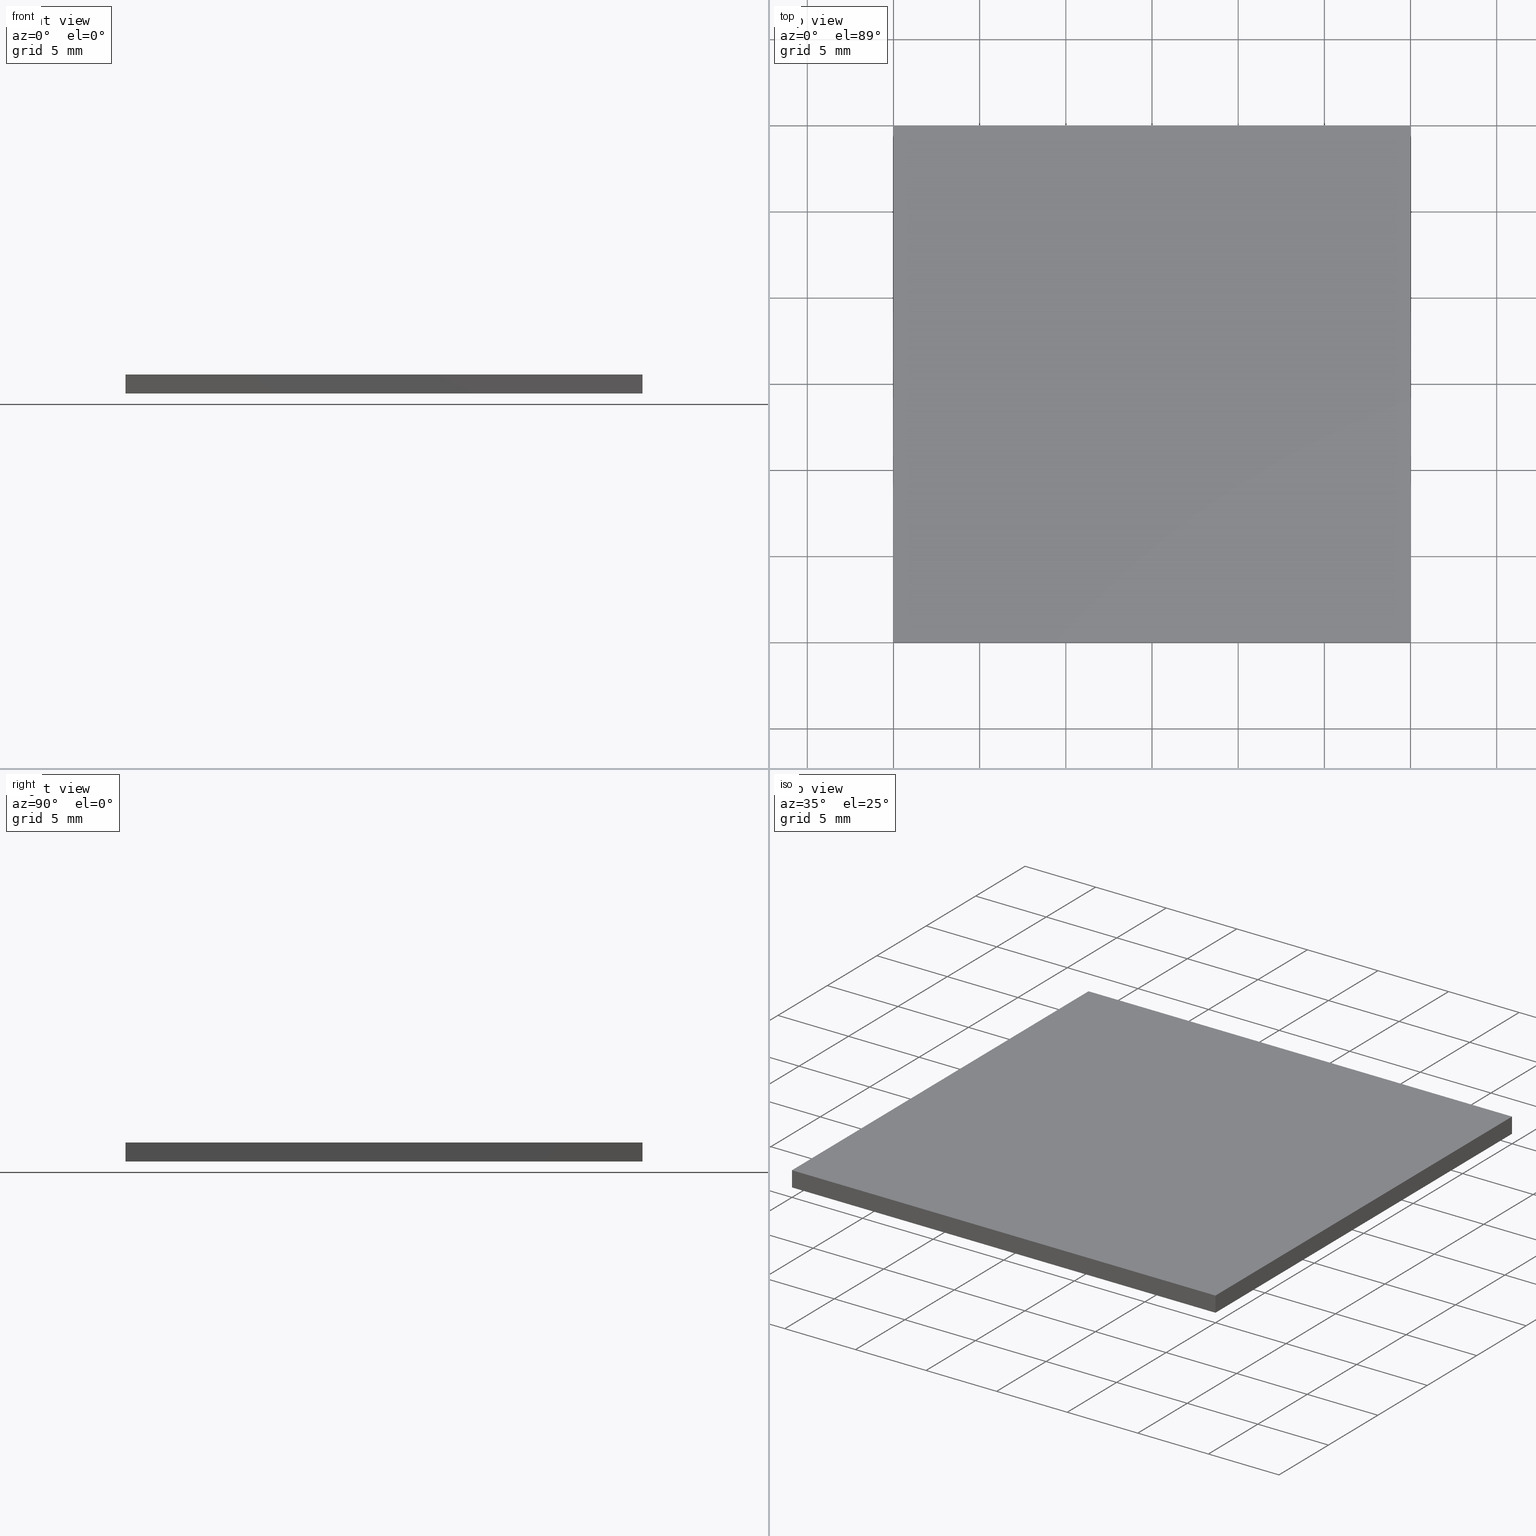
[diagram: canonical four-view strip — front | top / right | iso, engineering-drawing reading convention]
A machine part, canonical four-view strip (front | top / right | iso — engineering-drawing reading convention). The complete STEP part file that produces these views, byte-faithful:
ISO-10303-21;
HEADER;
FILE_DESCRIPTION (( 'STEP AP203' ),
    '1' );
FILE_NAME ('348506.STEP',
    '2019-07-31T07:40:00',
    ( '' ),
    ( '' ),
    'SwSTEP 2.0',
    'SolidWorks 2016',
    '' );
FILE_SCHEMA (( 'CONFIG_CONTROL_DESIGN' ));
ENDSEC;

DATA;
#1 = CARTESIAN_POINT ( 'NONE',  ( -14.99999999999999800, 15.00000000000000200, 1.100000000000000100 ) ) ;
#2 = PRODUCT_RELATED_PRODUCT_CATEGORY ( 'detail', '', ( #231 ) ) ;
#3 = ORIENTED_EDGE ( 'NONE', *, *, #6, .T. ) ;
#4 = DATE_AND_TIME ( #277, #39 ) ;
#5 = DATE_AND_TIME ( #150, #202 ) ;
#6 = EDGE_CURVE ( 'NONE', #9, #248, #234, .T. ) ;
#7 = MANIFOLD_SOLID_BREP ( '͹̨-����1', #153 ) ;
#8 = VECTOR ( 'NONE', #204, 1000.000000000000000 ) ;
#9 = VERTEX_POINT ( 'NONE', #169 ) ;
#10 = VECTOR ( 'NONE', #121, 1000.000000000000000 ) ;
#11 = PRODUCT_DEFINITION_FORMATION_WITH_SPECIFIED_SOURCE ( '�κ�', '', #231, .NOT_KNOWN. ) ;
#12 = CC_DESIGN_APPROVAL ( #251, ( #109 ) ) ;
#13 = LINE ( 'NONE', #133, #10 ) ;
#14 = CARTESIAN_POINT ( 'NONE',  ( -14.99999999999999800, -14.99999999999999800, 1.100000000000000100 ) ) ;
#15 = ORIENTED_EDGE ( 'NONE', *, *, #105, .T. ) ;
#16 = CARTESIAN_POINT ( 'NONE',  ( 15.00000000000000200, 15.00000000000000200, 0.0000000000000000000 ) ) ;
#17 = DIRECTION ( 'NONE',  ( 0.0000000000000000000, 0.0000000000000000000, -1.000000000000000000 ) ) ;
#18 = APPROVAL ( #224, 'δָ��' ) ;
#19 = CALENDAR_DATE ( 2019, 31, 7 ) ;
#20 = VECTOR ( 'NONE', #48, 1000.000000000000000 ) ;
#21 = DIRECTION ( 'NONE',  ( 0.0000000000000000000, 0.0000000000000000000, -1.000000000000000000 ) ) ;
#22 = APPLICATION_CONTEXT ( 'configuration controlled 3d designs of mechanical parts and assemblies' ) ;
#23 = CARTESIAN_POINT ( 'NONE',  ( 0.0000000000000000000, 0.0000000000000000000, 0.0000000000000000000 ) ) ;
#24 = CARTESIAN_POINT ( 'NONE',  ( 0.0000000000000000000, 0.0000000000000000000, 0.0000000000000000000 ) ) ;
#25 = PERSON_AND_ORGANIZATION ( #287, #103 ) ;
#26 = LINE ( 'NONE', #170, #261 ) ;
#27 = MECHANICAL_CONTEXT ( 'NONE', #250, 'mechanical' ) ;
#28 = ORIENTED_EDGE ( 'NONE', *, *, #273, .F. ) ;
#29 = CC_DESIGN_APPROVAL ( #268, ( #78 ) ) ;
#30 = DIRECTION ( 'NONE',  ( 0.0000000000000000000, 0.0000000000000000000, 1.000000000000000000 ) ) ;
#31 =( NAMED_UNIT ( * ) PLANE_ANGLE_UNIT ( ) SI_UNIT ( $, .RADIAN. ) );
#32 = DATE_AND_TIME ( #200, #212 ) ;
#33 = PERSON_AND_ORGANIZATION ( #287, #103 ) ;
#34 = APPROVAL_ROLE ( '' ) ;
#35 = FACE_OUTER_BOUND ( 'NONE', #242, .T. ) ;
#36 = CC_DESIGN_SECURITY_CLASSIFICATION ( #68, ( #11 ) ) ;
#37 = VECTOR ( 'NONE', #67, 1000.000000000000000 ) ;
#38 = EDGE_CURVE ( 'NONE', #266, #188, #254, .T. ) ;
#39 = LOCAL_TIME ( 15, 40, 0.0000000000000000000, #219 ) ;
#40 = PERSON_AND_ORGANIZATION ( #287, #103 ) ;
#41 = DESIGN_CONTEXT ( 'detailed design', #90, 'design' ) ;
#42 = CARTESIAN_POINT ( 'NONE',  ( 15.00000000000000200, 15.00000000000000200, 1.100000000000000100 ) ) ;
#43 = DIRECTION ( 'NONE',  ( 0.0000000000000000000, 1.000000000000000000, 0.0000000000000000000 ) ) ;
#44 = SECURITY_CLASSIFICATION_LEVEL ( 'unclassified' ) ;
#45 = PLANE ( 'NONE',  #171 ) ;
#46 = DIRECTION ( 'NONE',  ( 1.000000000000000000, 0.0000000000000000000, 0.0000000000000000000 ) ) ;
#47 = FACE_OUTER_BOUND ( 'NONE', #128, .T. ) ;
#48 = DIRECTION ( 'NONE',  ( 1.000000000000000000, 0.0000000000000000000, 0.0000000000000000000 ) ) ;
#49 = SECURITY_CLASSIFICATION_LEVEL ( 'unclassified' ) ;
#50 = CARTESIAN_POINT ( 'NONE',  ( 15.00000000000000200, -14.99999999999999800, 1.100000000000000100 ) ) ;
#51 = CARTESIAN_POINT ( 'NONE',  ( 15.00000000000000200, 15.00000000000000200, 1.100000000000000100 ) ) ;
#52 = PRODUCT ( '348506', '348506', '', ( #27 ) ) ;
#53 = CALENDAR_DATE ( 2019, 31, 7 ) ;
#54 = DIRECTION ( 'NONE',  ( -0.0000000000000000000, -0.0000000000000000000, -1.000000000000000000 ) ) ;
#55 = AXIS2_PLACEMENT_3D ( 'NONE', #179, #43, #285 ) ;
#56 = ORIENTED_EDGE ( 'NONE', *, *, #283, .T. ) ;
#57 = CARTESIAN_POINT ( 'NONE',  ( 0.0000000000000000000, 0.0000000000000000000, 0.0000000000000000000 ) ) ;
#58 = CC_DESIGN_PERSON_AND_ORGANIZATION_ASSIGNMENT ( #237, #315, ( #11 ) ) ;
#59 = PERSON_AND_ORGANIZATION ( #287, #103 ) ;
#60 = LOCAL_TIME ( 15, 40, 0.0000000000000000000, #278 ) ;
#61 = EDGE_CURVE ( 'NONE', #190, #198, #311, .T. ) ;
#62 = ORIENTED_EDGE ( 'NONE', *, *, #296, .T. ) ;
#63 = LOCAL_TIME ( 15, 40, 0.0000000000000000000, #86 ) ;
#64 = ORIENTED_EDGE ( 'NONE', *, *, #255, .F. ) ;
#65 = ADVANCED_FACE ( 'NONE', ( #131 ), #247, .F. ) ;
#66 = APPROVAL_DATE_TIME ( #5, #18 ) ;
#67 = DIRECTION ( 'NONE',  ( -0.0000000000000000000, -1.000000000000000000, -0.0000000000000000000 ) ) ;
#68 = SECURITY_CLASSIFICATION ( '', '', #44 ) ;
#69 = DATE_AND_TIME ( #182, #148 ) ;
#70 = COORDINATED_UNIVERSAL_TIME_OFFSET ( 8, 0, .AHEAD. ) ;
#71 = APPROVAL_STATUS ( 'not_yet_approved' ) ;
#72 = APPROVAL_ROLE ( '' ) ;
#73 = SHAPE_DEFINITION_REPRESENTATION ( #252, #152 ) ;
#74 = VECTOR ( 'NONE', #272, 1000.000000000000000 ) ;
#75 = DIRECTION ( 'NONE',  ( 1.000000000000000000, 0.0000000000000000000, 0.0000000000000000000 ) ) ;
#76 = DATE_TIME_ROLE ( 'classification_date' ) ;
#77 = PERSON_AND_ORGANIZATION ( #287, #103 ) ;
#78 = SECURITY_CLASSIFICATION ( '', '', #49 ) ;
#79 = ORIENTED_EDGE ( 'NONE', *, *, #38, .F. ) ;
#80 = AXIS2_PLACEMENT_3D ( 'NONE', #142, #183, #140 ) ;
#81 = COORDINATED_UNIVERSAL_TIME_OFFSET ( 8, 0, .AHEAD. ) ;
#82 = CC_DESIGN_PERSON_AND_ORGANIZATION_ASSIGNMENT ( #40, #308, ( #109 ) ) ;
#83 = LINE ( 'NONE', #203, #20 ) ;
#84 = AXIS2_PLACEMENT_3D ( 'NONE', #87, #17, #222 ) ;
#85 = CC_DESIGN_DATE_AND_TIME_ASSIGNMENT ( #69, #94, ( #125 ) ) ;
#86 = COORDINATED_UNIVERSAL_TIME_OFFSET ( 8, 0, .AHEAD. ) ;
#87 = CARTESIAN_POINT ( 'NONE',  ( 0.0000000000000000000, 0.0000000000000000000, 1.100000000000000100 ) ) ;
#88 = APPROVAL_PERSON_ORGANIZATION ( #33, #120, #138 ) ;
#89 = EDGE_LOOP ( 'NONE', ( #15, #235, #79, #298 ) ) ;
#90 = APPLICATION_CONTEXT ( 'configuration controlled 3d designs of mechanical parts and assemblies' ) ;
#91 = PLANE ( 'NONE',  #210 ) ;
#92 = MECHANICAL_CONTEXT ( 'NONE', #228, 'mechanical' ) ;
#93 = APPROVAL_STATUS ( 'not_yet_approved' ) ;
#94 = DATE_TIME_ROLE ( 'creation_date' ) ;
#95 = CC_DESIGN_SECURITY_CLASSIFICATION ( #78, ( #109 ) ) ;
#96 = PLANE ( 'NONE',  #55 ) ;
#97 = EDGE_CURVE ( 'NONE', #198, #248, #26, .T. ) ;
#98 = DIRECTION ( 'NONE',  ( 1.000000000000000000, 0.0000000000000000000, 0.0000000000000000000 ) ) ;
#99 = LOCAL_TIME ( 15, 40, 0.0000000000000000000, #81 ) ;
#100 = LINE ( 'NONE', #314, #145 ) ;
#101 = PERSON_AND_ORGANIZATION ( #287, #103 ) ;
#102 = APPROVAL ( #236, 'δָ��' ) ;
#103 = ORGANIZATION ( 'δָ��', 'δָ��', '' ) ;
#104 = ORIENTED_EDGE ( 'NONE', *, *, #97, .T. ) ;
#105 = EDGE_CURVE ( 'NONE', #156, #184, #192, .T. ) ;
#106 = CC_DESIGN_PERSON_AND_ORGANIZATION_ASSIGNMENT ( #25, #122, ( #109 ) ) ;
#107 = CC_DESIGN_PERSON_AND_ORGANIZATION_ASSIGNMENT ( #132, #281, ( #52 ) ) ;
#108 = LINE ( 'NONE', #51, #8 ) ;
#109 = PRODUCT_DEFINITION_FORMATION_WITH_SPECIFIED_SOURCE ( '�κ�', '', #52, .NOT_KNOWN. ) ;
#110 = ORIENTED_EDGE ( 'NONE', *, *, #61, .T. ) ;
#111 = APPROVAL_PERSON_ORGANIZATION ( #155, #276, #163 ) ;
#112 = EDGE_CURVE ( 'NONE', #266, #156, #271, .T. ) ;
#113 = CARTESIAN_POINT ( 'NONE',  ( 15.00000000000000200, -14.99999999999999800, 0.0000000000000000000 ) ) ;
#114 = ORIENTED_EDGE ( 'NONE', *, *, #273, .T. ) ;
#115 = PERSON_AND_ORGANIZATION_ROLE ( 'design_owner' ) ;
#116 = CALENDAR_DATE ( 2019, 31, 7 ) ;
#117 = DIRECTION ( 'NONE',  ( -1.000000000000000000, 0.0000000000000000000, 0.0000000000000000000 ) ) ;
#118 = APPROVAL_ROLE ( '' ) ;
#119 = APPLICATION_PROTOCOL_DEFINITION ( 'international standard', 'config_control_design', 1994, #228 ) ;
#120 = APPROVAL ( #71, 'δָ��' ) ;
#121 = DIRECTION ( 'NONE',  ( -1.000000000000000000, -0.0000000000000000000, -0.0000000000000000000 ) ) ;
#122 = PERSON_AND_ORGANIZATION_ROLE ( 'design_supplier' ) ;
#123 = DIRECTION ( 'NONE',  ( -1.000000000000000000, -0.0000000000000000000, -0.0000000000000000000 ) ) ;
#124 = CC_DESIGN_PERSON_AND_ORGANIZATION_ASSIGNMENT ( #77, #286, ( #11 ) ) ;
#125 = PRODUCT_DEFINITION ( 'δ֪', '', #109, #41 ) ;
#126 = PERSON_AND_ORGANIZATION ( #287, #103 ) ;
#127 = LOCAL_TIME ( 15, 40, 0.0000000000000000000, #139 ) ;
#128 = EDGE_LOOP ( 'NONE', ( #246, #229, #215, #56 ) ) ;
#129 = CC_DESIGN_APPROVAL ( #276, ( #164 ) ) ;
#130 = COORDINATED_UNIVERSAL_TIME_OFFSET ( 8, 0, .AHEAD. ) ;
#131 = FACE_OUTER_BOUND ( 'NONE', #172, .T. ) ;
#132 = PERSON_AND_ORGANIZATION ( #287, #103 ) ;
#133 = CARTESIAN_POINT ( 'NONE',  ( -14.99999999999999800, 15.00000000000000200, 0.0000000000000000000 ) ) ;
#134 = ORIENTED_EDGE ( 'NONE', *, *, #38, .T. ) ;
#135 = APPROVAL_PERSON_ORGANIZATION ( #289, #268, #118 ) ;
#136 = LINE ( 'NONE', #232, #194 ) ;
#137 = DIRECTION ( 'NONE',  ( 0.0000000000000000000, 1.000000000000000000, 0.0000000000000000000 ) ) ;
#138 = APPROVAL_ROLE ( '' ) ;
#139 = COORDINATED_UNIVERSAL_TIME_OFFSET ( 8, 0, .AHEAD. ) ;
#140 = DIRECTION ( 'NONE',  ( 0.0000000000000000000, 0.0000000000000000000, -1.000000000000000000 ) ) ;
#141 = DIRECTION ( 'NONE',  ( 0.0000000000000000000, 0.0000000000000000000, 1.000000000000000000 ) ) ;
#142 = CARTESIAN_POINT ( 'NONE',  ( -14.99999999999999800, -14.99999999999999800, 1.100000000000000100 ) ) ;
#143 = UNCERTAINTY_MEASURE_WITH_UNIT (LENGTH_MEASURE( 1.000000000000000100E-005 ), #187, 'distance_accuracy_value', 'NONE');
#144 = APPROVAL_STATUS ( 'not_yet_approved' ) ;
#145 = VECTOR ( 'NONE', #75, 1000.000000000000000 ) ;
#146 = CC_DESIGN_APPROVAL ( #102, ( #68 ) ) ;
#147 = DESIGN_CONTEXT ( 'detailed design', #22, 'design' ) ;
#148 = LOCAL_TIME ( 15, 40, 0.0000000000000000000, #130 ) ;
#149 = ORIENTED_EDGE ( 'NONE', *, *, #112, .F. ) ;
#150 = CALENDAR_DATE ( 2019, 31, 7 ) ;
#151 = ORIENTED_EDGE ( 'NONE', *, *, #209, .F. ) ;
#152 = ADVANCED_BREP_SHAPE_REPRESENTATION ( '348506', ( #7, #245 ), #239 ) ;
#153 = CLOSED_SHELL ( 'NONE', ( #300, #301, #243, #269, #65, #264 ) ) ;
#154 = CC_DESIGN_DATE_AND_TIME_ASSIGNMENT ( #193, #177, ( #164 ) ) ;
#155 = PERSON_AND_ORGANIZATION ( #287, #103 ) ;
#156 = VERTEX_POINT ( 'NONE', #113 ) ;
#157 = APPROVAL_DATE_TIME ( #4, #251 ) ;
#158 = PERSON_AND_ORGANIZATION ( #287, #103 ) ;
#159 = CARTESIAN_POINT ( 'NONE',  ( 15.00000000000000200, -14.99999999999999800, 0.0000000000000000000 ) ) ;
#160 = CARTESIAN_POINT ( 'NONE',  ( -14.99999999999999800, 15.00000000000000200, 1.100000000000000100 ) ) ;
#161 = DATE_TIME_ROLE ( 'classification_date' ) ;
#162 = DIRECTION ( 'NONE',  ( -1.000000000000000000, 0.0000000000000000000, -0.0000000000000000000 ) ) ;
#163 = APPROVAL_ROLE ( '' ) ;
#164 = PRODUCT_DEFINITION ( 'δ֪', '', #11, #147 ) ;
#165 = CARTESIAN_POINT ( 'NONE',  ( -14.99999999999999800, 15.00000000000000200, 1.100000000000000100 ) ) ;
#166 = FACE_OUTER_BOUND ( 'NONE', #292, .T. ) ;
#167 = DATE_AND_TIME ( #116, #127 ) ;
#168 = APPROVAL_DATE_TIME ( #32, #268 ) ;
#169 = CARTESIAN_POINT ( 'NONE',  ( -14.99999999999999800, 15.00000000000000200, 0.0000000000000000000 ) ) ;
#170 = CARTESIAN_POINT ( 'NONE',  ( -14.99999999999999800, -14.99999999999999800, 1.100000000000000100 ) ) ;
#171 = AXIS2_PLACEMENT_3D ( 'NONE', #23, #21, #162 ) ;
#172 = EDGE_LOOP ( 'NONE', ( #134, #62, #110, #240 ) ) ;
#173 = PERSON_AND_ORGANIZATION ( #287, #103 ) ;
#174 = DIRECTION ( 'NONE',  ( -0.0000000000000000000, -0.0000000000000000000, -1.000000000000000000 ) ) ;
#175 = ORIENTED_EDGE ( 'NONE', *, *, #97, .F. ) ;
#176 = CARTESIAN_POINT ( 'NONE',  ( -14.99999999999999800, -14.99999999999999800, 0.0000000000000000000 ) ) ;
#177 = DATE_TIME_ROLE ( 'creation_date' ) ;
#178 = APPROVAL_PERSON_ORGANIZATION ( #126, #251, #205 ) ;
#179 = CARTESIAN_POINT ( 'NONE',  ( -14.99999999999999800, -14.99999999999999800, 1.100000000000000100 ) ) ;
#180 = PERSON_AND_ORGANIZATION_ROLE ( 'creator' ) ;
#181 = CC_DESIGN_DATE_AND_TIME_ASSIGNMENT ( #167, #76, ( #68 ) ) ;
#182 = CALENDAR_DATE ( 2019, 31, 7 ) ;
#183 = DIRECTION ( 'NONE',  ( 1.000000000000000000, 0.0000000000000000000, 0.0000000000000000000 ) ) ;
#184 = VERTEX_POINT ( 'NONE', #16 ) ;
#185 = DATE_AND_TIME ( #267, #60 ) ;
#186 = DIRECTION ( 'NONE',  ( 0.0000000000000000000, -1.000000000000000000, 0.0000000000000000000 ) ) ;
#187 =( LENGTH_UNIT ( ) NAMED_UNIT ( * ) SI_UNIT ( .MILLI., .METRE. ) );
#188 = VERTEX_POINT ( 'NONE', #42 ) ;
#189 = PERSON_AND_ORGANIZATION ( #287, #103 ) ;
#190 = VERTEX_POINT ( 'NONE', #160 ) ;
#191 = APPROVAL_PERSON_ORGANIZATION ( #173, #102, #34 ) ;
#192 = LINE ( 'NONE', #159, #74 ) ;
#193 = DATE_AND_TIME ( #19, #99 ) ;
#194 = VECTOR ( 'NONE', #123, 1000.000000000000000 ) ;
#195 = APPROVAL_DATE_TIME ( #185, #102 ) ;
#196 = VECTOR ( 'NONE', #54, 1000.000000000000000 ) ;
#197 = CC_DESIGN_APPROVAL ( #120, ( #125 ) ) ;
#198 = VERTEX_POINT ( 'NONE', #226 ) ;
#199 = CARTESIAN_POINT ( 'NONE',  ( -14.99999999999999800, -14.99999999999999800, 0.0000000000000000000 ) ) ;
#200 = CALENDAR_DATE ( 2019, 31, 7 ) ;
#201 = EDGE_LOOP ( 'NONE', ( #3, #175, #262, #270 ) ) ;
#202 = LOCAL_TIME ( 15, 40, 0.0000000000000000000, #70 ) ;
#203 = CARTESIAN_POINT ( 'NONE',  ( -14.99999999999999800, -14.99999999999999800, 1.100000000000000100 ) ) ;
#204 = DIRECTION ( 'NONE',  ( -0.0000000000000000000, -0.0000000000000000000, -1.000000000000000000 ) ) ;
#205 = APPROVAL_ROLE ( '' ) ;
#206 = FACE_OUTER_BOUND ( 'NONE', #89, .T. ) ;
#207 = VECTOR ( 'NONE', #220, 1000.000000000000000 ) ;
#208 = APPLICATION_PROTOCOL_DEFINITION ( 'international standard', 'config_control_design', 1994, #250 ) ;
#209 = EDGE_CURVE ( 'NONE', #184, #9, #13, .T. ) ;
#210 = AXIS2_PLACEMENT_3D ( 'NONE', #253, #117, #280 ) ;
#211 = DIRECTION ( 'NONE',  ( 0.0000000000000000000, -0.0000000000000000000, -1.000000000000000000 ) ) ;
#212 = LOCAL_TIME ( 15, 40, 0.0000000000000000000, #217 ) ;
#213 = PERSON_AND_ORGANIZATION ( #287, #103 ) ;
#214 = VECTOR ( 'NONE', #137, 1000.000000000000000 ) ;
#215 = ORIENTED_EDGE ( 'NONE', *, *, #296, .F. ) ;
#216 = CC_DESIGN_PERSON_AND_ORGANIZATION_ASSIGNMENT ( #59, #115, ( #231 ) ) ;
#217 = COORDINATED_UNIVERSAL_TIME_OFFSET ( 8, 0, .AHEAD. ) ;
#218 = CC_DESIGN_PERSON_AND_ORGANIZATION_ASSIGNMENT ( #101, #291, ( #68 ) ) ;
#219 = COORDINATED_UNIVERSAL_TIME_OFFSET ( 8, 0, .AHEAD. ) ;
#220 = DIRECTION ( 'NONE',  ( -0.0000000000000000000, -1.000000000000000000, -0.0000000000000000000 ) ) ;
#221 = APPROVAL_DATE_TIME ( #297, #276 ) ;
#222 = DIRECTION ( 'NONE',  ( -1.000000000000000000, 0.0000000000000000000, -0.0000000000000000000 ) ) ;
#223 = ORIENTED_EDGE ( 'NONE', *, *, #105, .F. ) ;
#224 = APPROVAL_STATUS ( 'not_yet_approved' ) ;
#225 = ORIENTED_EDGE ( 'NONE', *, *, #6, .F. ) ;
#226 = CARTESIAN_POINT ( 'NONE',  ( -14.99999999999999800, -14.99999999999999800, 1.100000000000000100 ) ) ;
#227 = APPROVAL_STATUS ( 'not_yet_approved' ) ;
#228 = APPLICATION_CONTEXT ( 'configuration controlled 3d designs of mechanical parts and assemblies' ) ;
#229 = ORIENTED_EDGE ( 'NONE', *, *, #303, .F. ) ;
#230 = PERSON_AND_ORGANIZATION_ROLE ( 'creator' ) ;
#231 = PRODUCT ( '348506', '348506', '', ( #92 ) ) ;
#232 = CARTESIAN_POINT ( 'NONE',  ( -14.99999999999999800, 15.00000000000000200, 1.100000000000000100 ) ) ;
#233 = DATE_AND_TIME ( #275, #63 ) ;
#234 = LINE ( 'NONE', #199, #37 ) ;
#235 = ORIENTED_EDGE ( 'NONE', *, *, #283, .F. ) ;
#236 = APPROVAL_STATUS ( 'not_yet_approved' ) ;
#237 = PERSON_AND_ORGANIZATION ( #287, #103 ) ;
#238 = COORDINATED_UNIVERSAL_TIME_OFFSET ( 8, 0, .AHEAD. ) ;
#239 =( GEOMETRIC_REPRESENTATION_CONTEXT ( 3 ) GLOBAL_UNCERTAINTY_ASSIGNED_CONTEXT ( ( #143 ) ) GLOBAL_UNIT_ASSIGNED_CONTEXT ( ( #187, #31, #290 ) ) REPRESENTATION_CONTEXT ( 'NONE', 'WORKASPACE' ) );
#240 = ORIENTED_EDGE ( 'NONE', *, *, #255, .T. ) ;
#241 = CC_DESIGN_PERSON_AND_ORGANIZATION_ASSIGNMENT ( #158, #180, ( #164 ) ) ;
#242 = EDGE_LOOP ( 'NONE', ( #223, #28, #225, #151 ) ) ;
#243 = ADVANCED_FACE ( 'NONE', ( #258 ), #288, .F. ) ;
#244 = APPROVAL_DATE_TIME ( #265, #120 ) ;
#245 = AXIS2_PLACEMENT_3D ( 'NONE', #24, #30, #98 ) ;
#246 = ORIENTED_EDGE ( 'NONE', *, *, #209, .T. ) ;
#247 = PLANE ( 'NONE',  #84 ) ;
#248 = VERTEX_POINT ( 'NONE', #176 ) ;
#249 = DIRECTION ( 'NONE',  ( -0.0000000000000000000, -0.0000000000000000000, -1.000000000000000000 ) ) ;
#250 = APPLICATION_CONTEXT ( 'configuration controlled 3d designs of mechanical parts and assemblies' ) ;
#251 = APPROVAL ( #227, 'δָ��' ) ;
#252 = PRODUCT_DEFINITION_SHAPE ( 'NONE', 'NONE',  #164 ) ;
#253 = CARTESIAN_POINT ( 'NONE',  ( 15.00000000000000200, -14.99999999999999800, 1.100000000000000100 ) ) ;
#254 = LINE ( 'NONE', #307, #214 ) ;
#255 = EDGE_CURVE ( 'NONE', #198, #266, #83, .T. ) ;
#256 = PRODUCT_DEFINITION_SHAPE ( 'NONE', 'NONE',  #125 ) ;
#257 = PERSON_AND_ORGANIZATION ( #287, #103 ) ;
#258 = FACE_OUTER_BOUND ( 'NONE', #201, .T. ) ;
#259 = APPROVAL_PERSON_ORGANIZATION ( #257, #18, #72 ) ;
#260 = CALENDAR_DATE ( 2019, 31, 7 ) ;
#261 = VECTOR ( 'NONE', #249, 1000.000000000000000 ) ;
#262 = ORIENTED_EDGE ( 'NONE', *, *, #61, .F. ) ;
#263 = CC_DESIGN_DATE_AND_TIME_ASSIGNMENT ( #233, #161, ( #78 ) ) ;
#264 = ADVANCED_FACE ( 'NONE', ( #35 ), #45, .T. ) ;
#265 = DATE_AND_TIME ( #260, #294 ) ;
#266 = VERTEX_POINT ( 'NONE', #50 ) ;
#267 = CALENDAR_DATE ( 2019, 31, 7 ) ;
#268 = APPROVAL ( #93, 'δָ��' ) ;
#269 = ADVANCED_FACE ( 'NONE', ( #166 ), #96, .F. ) ;
#270 = ORIENTED_EDGE ( 'NONE', *, *, #303, .T. ) ;
#271 = LINE ( 'NONE', #306, #282 ) ;
#272 = DIRECTION ( 'NONE',  ( 0.0000000000000000000, 1.000000000000000000, 0.0000000000000000000 ) ) ;
#273 = EDGE_CURVE ( 'NONE', #248, #156, #100, .T. ) ;
#274 = AXIS2_PLACEMENT_3D ( 'NONE', #165, #186, #211 ) ;
#275 = CALENDAR_DATE ( 2019, 31, 7 ) ;
#276 = APPROVAL ( #144, 'δָ��' ) ;
#277 = CALENDAR_DATE ( 2019, 31, 7 ) ;
#278 = COORDINATED_UNIVERSAL_TIME_OFFSET ( 8, 0, .AHEAD. ) ;
#279 = APPLICATION_PROTOCOL_DEFINITION ( 'international standard', 'config_control_design', 1994, #90 ) ;
#280 = DIRECTION ( 'NONE',  ( 0.0000000000000000000, 0.0000000000000000000, 1.000000000000000000 ) ) ;
#281 = PERSON_AND_ORGANIZATION_ROLE ( 'design_owner' ) ;
#282 = VECTOR ( 'NONE', #174, 1000.000000000000000 ) ;
#283 = EDGE_CURVE ( 'NONE', #188, #184, #108, .T. ) ;
#284 = APPLICATION_PROTOCOL_DEFINITION ( 'international standard', 'config_control_design', 1994, #22 ) ;
#285 = DIRECTION ( 'NONE',  ( 0.0000000000000000000, -0.0000000000000000000, 1.000000000000000000 ) ) ;
#286 = PERSON_AND_ORGANIZATION_ROLE ( 'creator' ) ;
#287 = PERSON ( 'δָ��', 'δָ��', 'δָ��', ('δָ��'), ('δָ��'), ('δָ��') ) ;
#288 = PLANE ( 'NONE',  #80 ) ;
#289 = PERSON_AND_ORGANIZATION ( #287, #103 ) ;
#290 =( NAMED_UNIT ( * ) SI_UNIT ( $, .STERADIAN. ) SOLID_ANGLE_UNIT ( ) );
#291 = PERSON_AND_ORGANIZATION_ROLE ( 'classification_officer' ) ;
#292 = EDGE_LOOP ( 'NONE', ( #114, #149, #64, #104 ) ) ;
#293 = PRODUCT_RELATED_PRODUCT_CATEGORY ( 'detail', '', ( #52 ) ) ;
#294 = LOCAL_TIME ( 15, 40, 0.0000000000000000000, #302 ) ;
#295 = CC_DESIGN_PERSON_AND_ORGANIZATION_ASSIGNMENT ( #189, #230, ( #125 ) ) ;
#296 = EDGE_CURVE ( 'NONE', #188, #190, #136, .T. ) ;
#297 = DATE_AND_TIME ( #53, #305 ) ;
#298 = ORIENTED_EDGE ( 'NONE', *, *, #112, .T. ) ;
#299 = CC_DESIGN_APPROVAL ( #18, ( #11 ) ) ;
#300 = ADVANCED_FACE ( 'NONE', ( #206 ), #91, .F. ) ;
#301 = ADVANCED_FACE ( 'NONE', ( #47 ), #313, .F. ) ;
#302 = COORDINATED_UNIVERSAL_TIME_OFFSET ( 8, 0, .AHEAD. ) ;
#303 = EDGE_CURVE ( 'NONE', #190, #9, #310, .T. ) ;
#304 = AXIS2_PLACEMENT_3D ( 'NONE', #57, #141, #46 ) ;
#305 = LOCAL_TIME ( 15, 40, 0.0000000000000000000, #238 ) ;
#306 = CARTESIAN_POINT ( 'NONE',  ( 15.00000000000000200, -14.99999999999999800, 1.100000000000000100 ) ) ;
#307 = CARTESIAN_POINT ( 'NONE',  ( 15.00000000000000200, -14.99999999999999800, 1.100000000000000100 ) ) ;
#308 = PERSON_AND_ORGANIZATION_ROLE ( 'creator' ) ;
#309 = CC_DESIGN_PERSON_AND_ORGANIZATION_ASSIGNMENT ( #213, #312, ( #78 ) ) ;
#310 = LINE ( 'NONE', #1, #196 ) ;
#311 = LINE ( 'NONE', #14, #207 ) ;
#312 = PERSON_AND_ORGANIZATION_ROLE ( 'classification_officer' ) ;
#313 = PLANE ( 'NONE',  #274 ) ;
#314 = CARTESIAN_POINT ( 'NONE',  ( -14.99999999999999800, -14.99999999999999800, 0.0000000000000000000 ) ) ;
#315 = PERSON_AND_ORGANIZATION_ROLE ( 'design_supplier' ) ;
ENDSEC;
END-ISO-10303-21;
